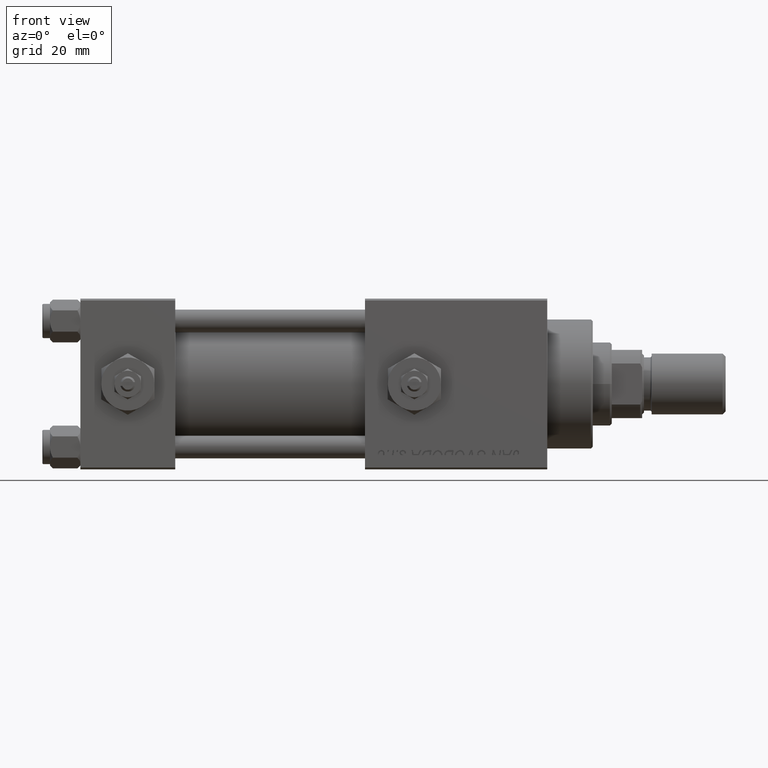
[diagram: clean part render]
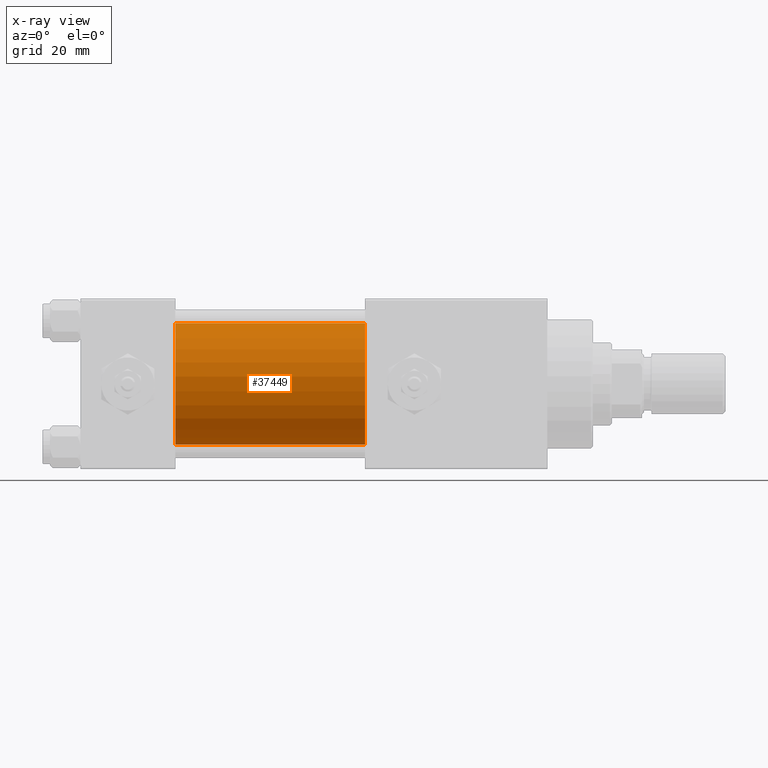
[diagram: x-ray — body ghosted, one internal face saturated and labeled with its STEP entity id]
A machine part, front view, then the same camera in x-ray: the body is ghosted and one INTERNAL B-rep face — a face not visible from any outside direction — is saturated and labeled: STEP entity #37449.
In plain terms, the highlighted cylindrical surface (partial cylindrical patch) has radius 16 mm, axis along (-1, -0, -0).
Its self-contained STEP definition (entity closure, byte-faithful):
#546 = CARTESIAN_POINT ( 'NONE',  ( 75.00000000000001421, -2.602085213965210642E-15, 0.000000000000000000 ) ) ;
#1470 = VECTOR ( 'NONE', #19524, 1000.000000000000000 ) ;
#1857 = EDGE_CURVE ( 'NONE', #38307, #9639, #35491, .T. ) ;
#5468 = CYLINDRICAL_SURFACE ( 'NONE', #32302, 16.00000000000000000 ) ;
#5722 = FACE_OUTER_BOUND ( 'NONE', #35355, .T. ) ;
#7504 = AXIS2_PLACEMENT_3D ( 'NONE', #546, #12268, #24513 ) ;
#7614 = CARTESIAN_POINT ( 'NONE',  ( 75.00000000000001421, -6.426503353294456087E-16, -16.00000000000000000 ) ) ;
#7834 = EDGE_CURVE ( 'NONE', #38526, #48792, #19848, .T. ) ;
#9639 = VERTEX_POINT ( 'NONE', #44432 ) ;
#9981 = CARTESIAN_POINT ( 'NONE',  ( 75.00000000000001421, -2.602085213965210642E-15, 0.000000000000000000 ) ) ;
#10809 = ORIENTED_EDGE ( 'NONE', *, *, #18216, .F. ) ;
#12268 = DIRECTION ( 'NONE',  ( 1.000000000000000000, 0.000000000000000000, 0.000000000000000000 ) ) ;
#18216 = EDGE_CURVE ( 'NONE', #9639, #48792, #30902, .T. ) ;
#19524 = DIRECTION ( 'NONE',  ( -1.000000000000000000, -0.000000000000000000, -0.000000000000000000 ) ) ;
#19848 = LINE ( 'NONE', #7614, #21078 ) ;
#21078 = VECTOR ( 'NONE', #44348, 1000.000000000000000 ) ;
#21550 = AXIS2_PLACEMENT_3D ( 'NONE', #34796, #51049, #30808 ) ;
#21698 = DIRECTION ( 'NONE',  ( 0.000000000000000000, 0.000000000000000000, 1.000000000000000000 ) ) ;
#24513 = DIRECTION ( 'NONE',  ( 0.000000000000000000, 0.000000000000000000, -1.000000000000000000 ) ) ;
#29650 = CARTESIAN_POINT ( 'NONE',  ( 25.00000000000000000, -6.426503353294456087E-16, -16.00000000000000000 ) ) ;
#30808 = DIRECTION ( 'NONE',  ( 0.000000000000000000, 0.000000000000000000, -1.000000000000000000 ) ) ;
#30902 = CIRCLE ( 'NONE', #21550, 16.00000000000000000 ) ;
#32025 = CARTESIAN_POINT ( 'NONE',  ( 75.00000000000001421, -2.602085213965210642E-15, 16.00000000000000000 ) ) ;
#32302 = AXIS2_PLACEMENT_3D ( 'NONE', #9981, #41690, #21698 ) ;
#32774 = EDGE_CURVE ( 'NONE', #38307, #38526, #34685, .T. ) ;
#34685 = CIRCLE ( 'NONE', #7504, 16.00000000000000000 ) ;
#34796 = CARTESIAN_POINT ( 'NONE',  ( 25.00000000000000000, -2.602085213965210642E-15, 0.000000000000000000 ) ) ;
#35355 = EDGE_LOOP ( 'NONE', ( #48884, #47487, #10809, #50962 ) ) ;
#35491 = LINE ( 'NONE', #32025, #1470 ) ;
#35660 = CARTESIAN_POINT ( 'NONE',  ( 75.00000000000001421, -6.426503353294456087E-16, -16.00000000000000000 ) ) ;
#37449 = ADVANCED_FACE ( 'NONE', ( #5722 ), #5468, .F. ) ;
#38307 = VERTEX_POINT ( 'NONE', #52522 ) ;
#38526 = VERTEX_POINT ( 'NONE', #35660 ) ;
#41690 = DIRECTION ( 'NONE',  ( -1.000000000000000000, -0.000000000000000000, -0.000000000000000000 ) ) ;
#44348 = DIRECTION ( 'NONE',  ( -1.000000000000000000, -0.000000000000000000, -0.000000000000000000 ) ) ;
#44432 = CARTESIAN_POINT ( 'NONE',  ( 25.00000000000000000, -2.602085213965210642E-15, 16.00000000000000000 ) ) ;
#47487 = ORIENTED_EDGE ( 'NONE', *, *, #7834, .T. ) ;
#48792 = VERTEX_POINT ( 'NONE', #29650 ) ;
#48884 = ORIENTED_EDGE ( 'NONE', *, *, #32774, .T. ) ;
#50962 = ORIENTED_EDGE ( 'NONE', *, *, #1857, .F. ) ;
#51049 = DIRECTION ( 'NONE',  ( 1.000000000000000000, 0.000000000000000000, 0.000000000000000000 ) ) ;
#52522 = CARTESIAN_POINT ( 'NONE',  ( 75.00000000000001421, -2.602085213965210642E-15, 16.00000000000000000 ) ) ;